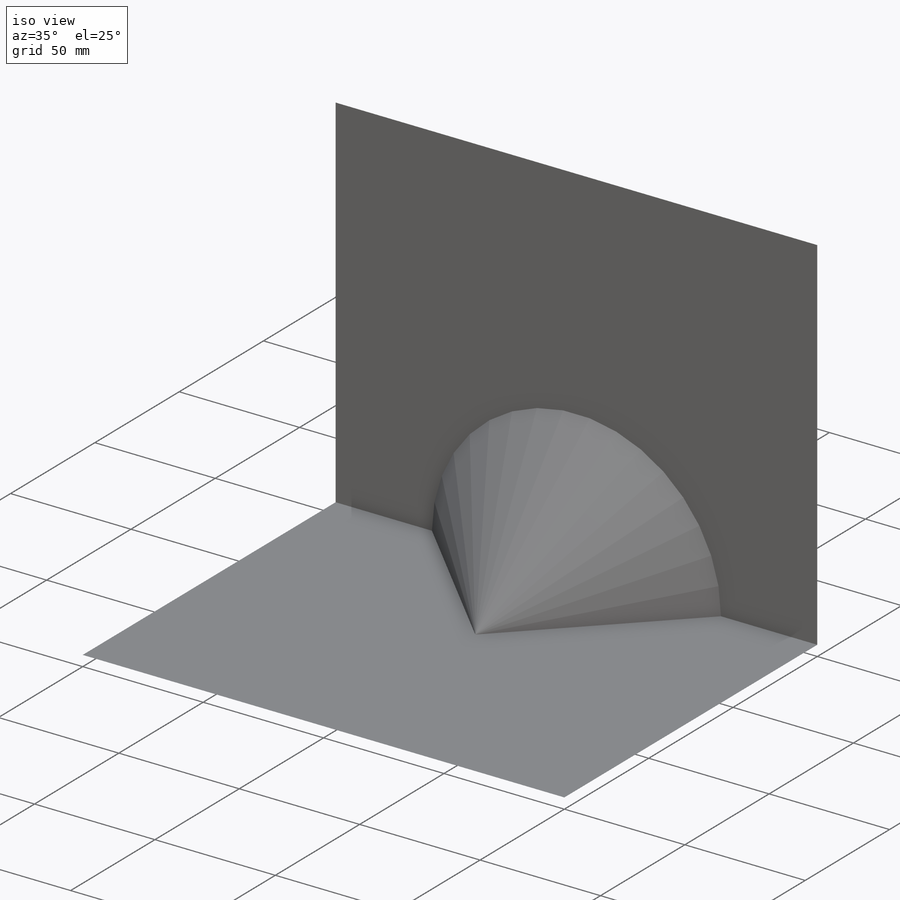
[diagram: iso view]
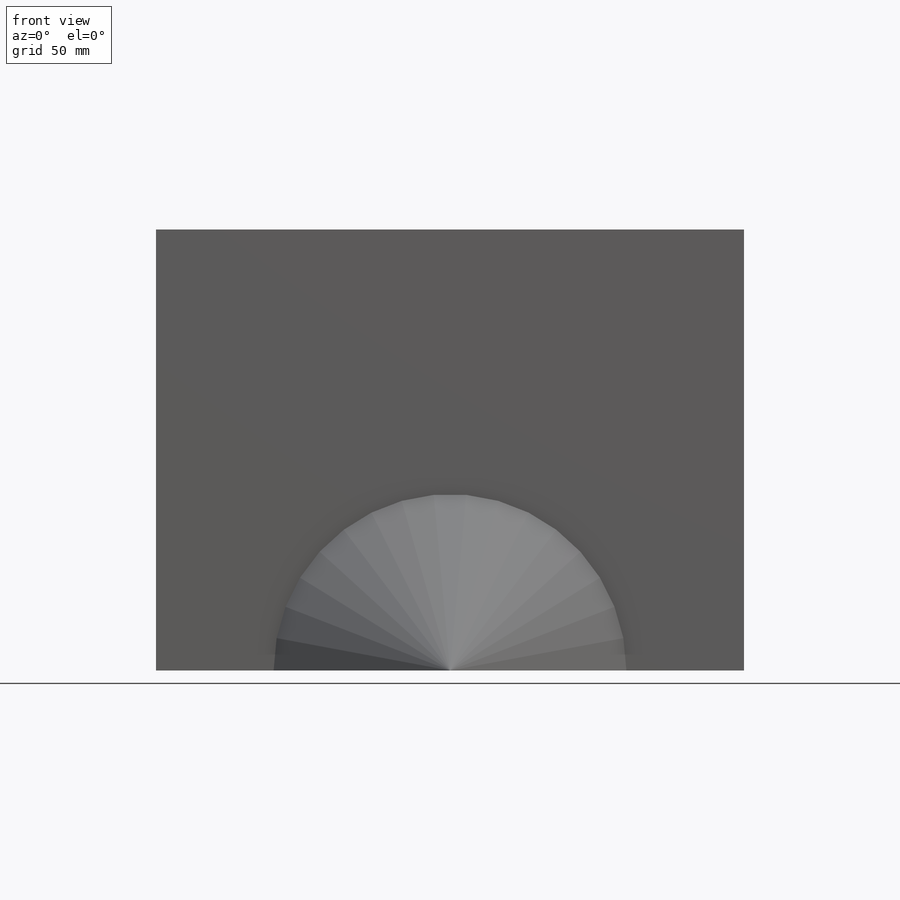
[diagram: front view]
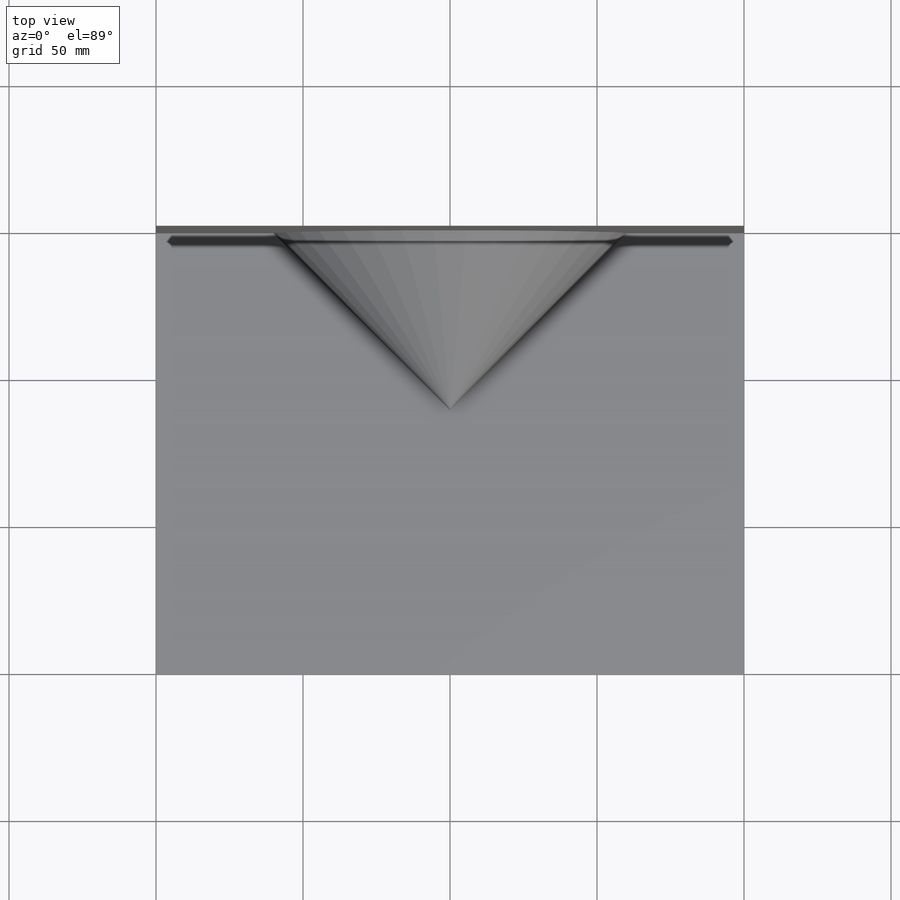
[diagram: top view]
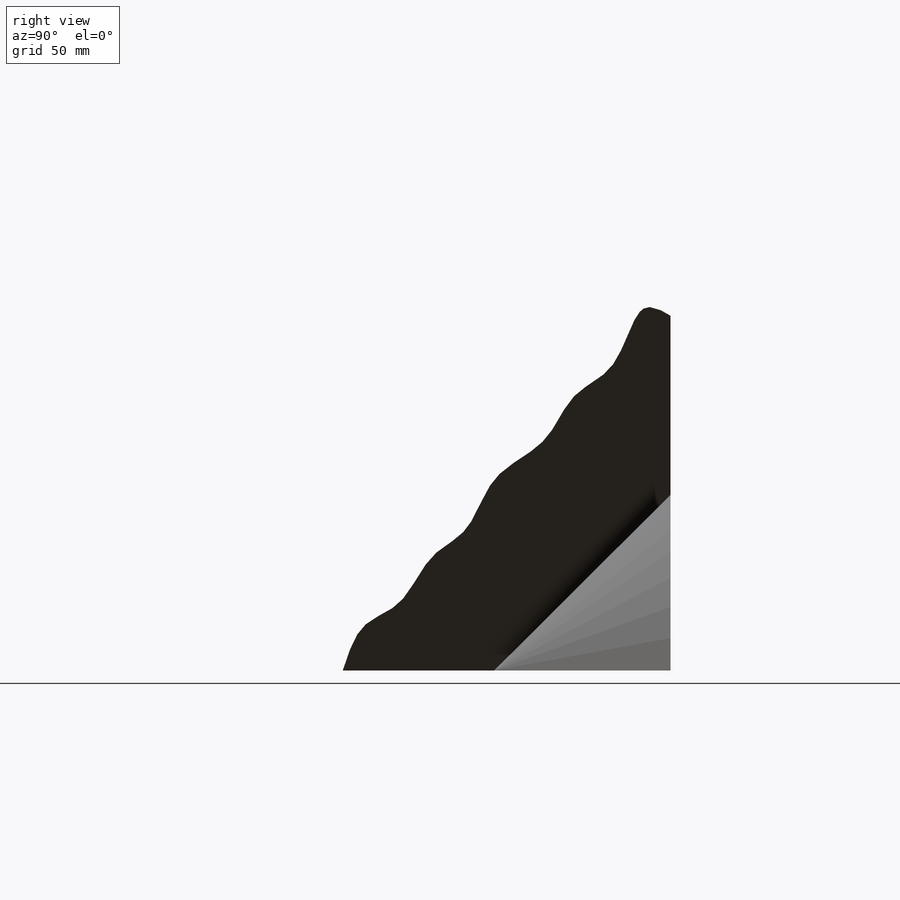
[diagram: right view]
SOLIDWORKS PART (.sldprt)
format: sldprt  version: not decoded by parser v0  size: 231,424 bytes
history: native  units: mm
features: sketch x8, extrude x2, material x1, revolve x1 (+13 scaffold rows collapsed)
feature tree (25):
  scaffold x13  (default folders/planes/origin — collapsed)
  material  "Material <not specified>"
  sketch  "Sketch1"  dims[D1=150.0mm D2=200.0mm]
  extrude  "Extrude1"  Depth=0.0001mm
  sketch  "Sketch2"  dims[D1=200.0mm D2=150.0mm]
  extrude  "Extrude2"  Depth=0.0001mm
  sketch  "Sketch3"  dims[c1.D1=~60.323058mm c2.D1=45.0deg c2.D2=60.0mm]
  revolve  "Revolve2"  Angle=180deg
  sketch  "Sketch4"  dims[D1=25.0mm]
  sketch  "Sketch5"
  sketch  "3DSketch1"
  sketch  "Sketch6"
  sketch  "Surface-Fill2"
decode coverage: 7 of 11 modeling features carry decoded parameters
note: ~ marks probable driven/reference dimensions
note: suppression state not decoded; provenance and decode notes live in map.json
